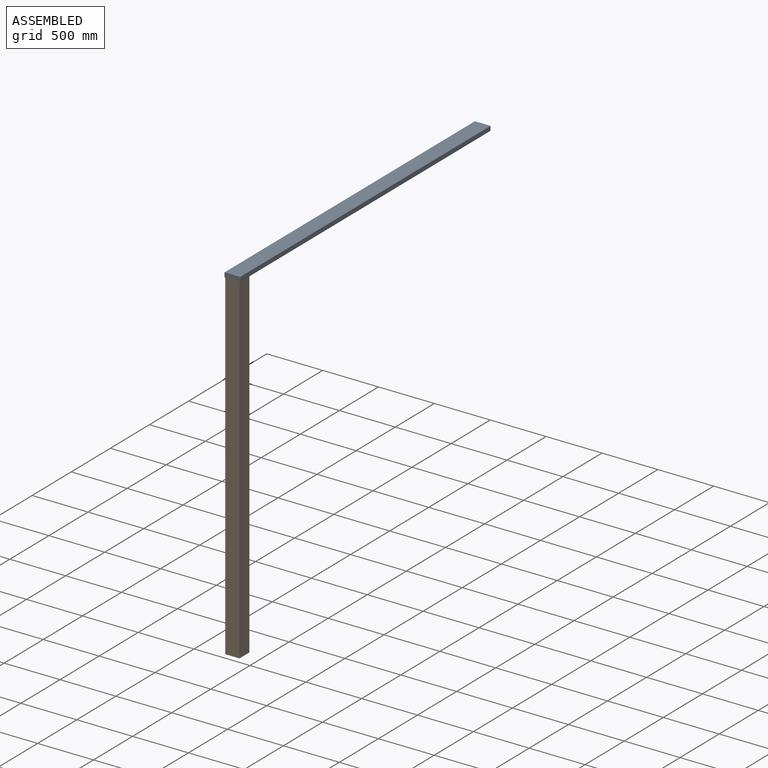
[diagram: assembled view]
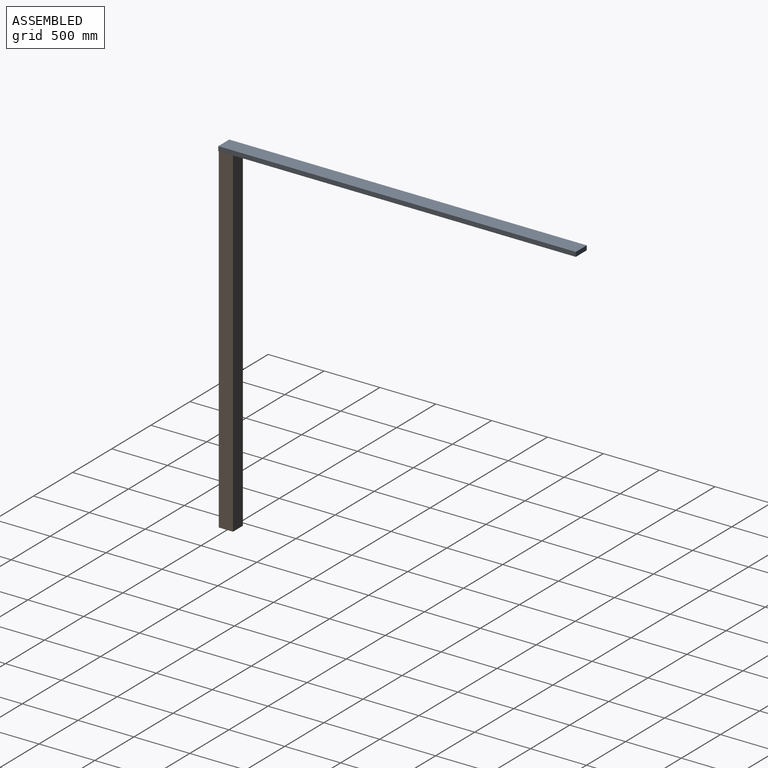
[diagram: assembled view, second angle]
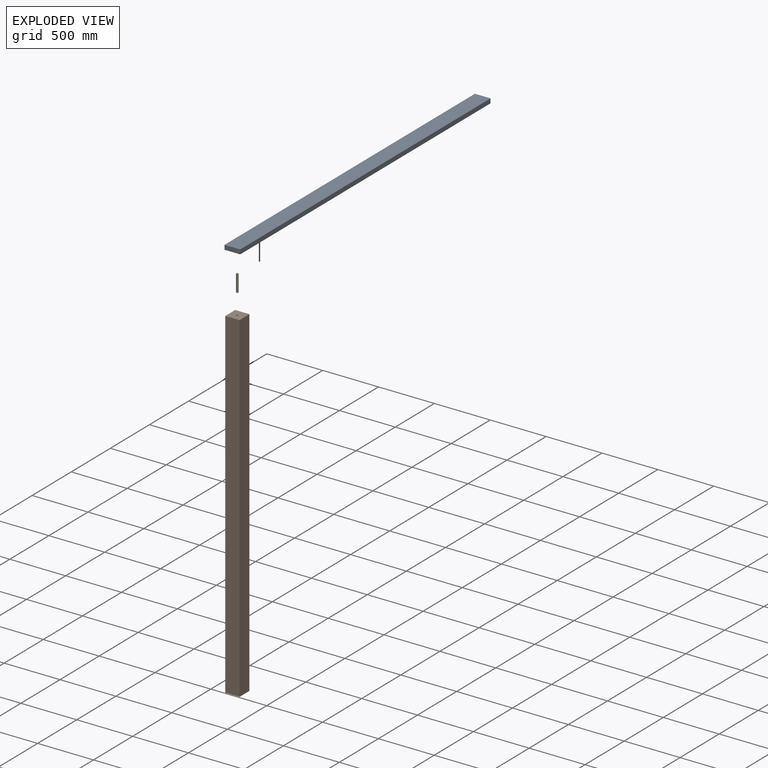
[diagram: exploded view]
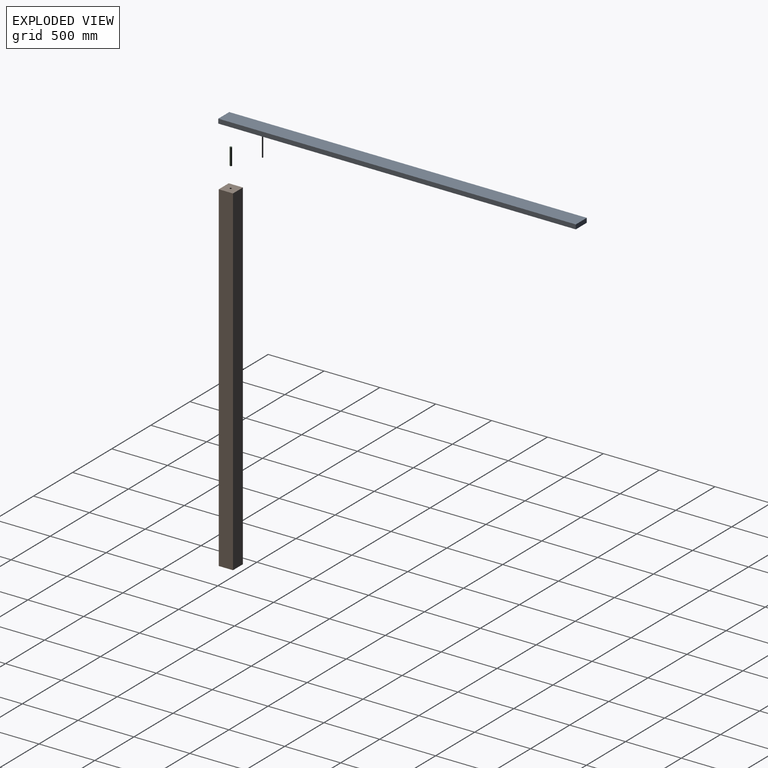
[diagram: exploded view, second angle]
ASSEMBLY  parts=3 mates=2
PART A: 8 faces, bbox 140x3200.4x40 mm
  f0: plane 3200.4x140.01mm, normal (0,0,-1), area 447786.3mm2, adj f1,f3,f4,f5,f6
  f1: plane 140.01x40.01mm, normal (0,1,0), area 5600.9mm2, adj f0,f2,f4,f5
  f2: plane 3200.4x140.01mm, normal (0,0,1), area 448071.4mm2, adj f1,f3,f4,f5
  f3: plane 140.01x40.01mm, normal (0,-1,0), area 5600.9mm2, adj f0,f2,f4,f5
  f4: plane 3200.4x40.01mm, normal (1,0,0), area 128032mm2, adj f0,f1,f2,f3
  f5: plane 3200.4x40.01mm, normal (-1,0,0), area 128032mm2, adj f0,f1,f2,f3
  f6: cylinder r=9.53mm len=25.4mm, axis (0,0,-1), area 1520.1mm2, adj f0,f7
  f7: plane 19.05x19.05mm, normal (0,0,-1), area 285mm2, adj f6
PART B: 8 faces, bbox 127x127x3048 mm
  f0: plane 3048x127mm, normal (-1,0,0), area 387096mm2, adj f1,f3,f4,f5
  f1: plane 3048x127mm, normal (0,-1,0), area 387096mm2, adj f0,f2,f4,f5
  f2: plane 3048x127mm, normal (1,0,0), area 387096mm2, adj f1,f3,f4,f5
  f3: plane 3048x127mm, normal (0,1,0), area 387096mm2, adj f0,f2,f4,f5
  f4: plane 127x127mm, normal (0,0,1), area 15844mm2, adj f0,f1,f2,f3,f6
  f5: plane 127x127mm, normal (0,0,-1), area 16129mm2, adj f0,f1,f2,f3
  f6: cylinder r=9.53mm len=127mm, axis (0,0,1), area 7600.6mm2, adj f4,f7
  f7: plane 19.05x19.05mm, normal (0,0,1), area 285mm2, adj f6
PART C: 3 faces, bbox 19.1x19.1x152.4 mm
  f0: cylinder r=9.53mm len=152.4mm, axis (0,0,-1), area 9120.7mm2, adj f1,f2
  f1: plane 19.05x19.05mm, normal (0,0,1), area 285mm2, adj f0
  f2: plane 19.05x19.05mm, normal (0,0,-1), area 285mm2, adj f0
PLACE A rot(axis=(0,0,1),180deg) t=(-161.14,3052.91,3087.56)mm
PLACE B t=(-261.75,-50.7,31.31)mm
PLACE C t=(-216.95,-60.61,2952.31)mm
MATE fastened B.f6 <-> C.f0  axis (0,0,1) through (-231.14,-44.6,2952.31)mm
MATE fastened C.f0 <-> A.f6  axis (0,0,1) through (-231.14,-44.6,3104.71)mm
